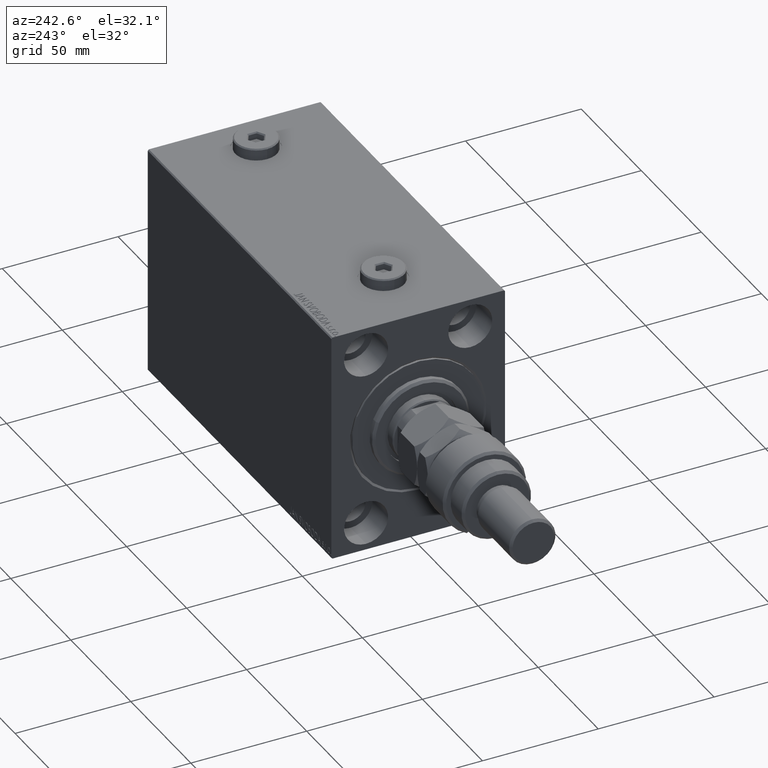
[diagram: clean part render]
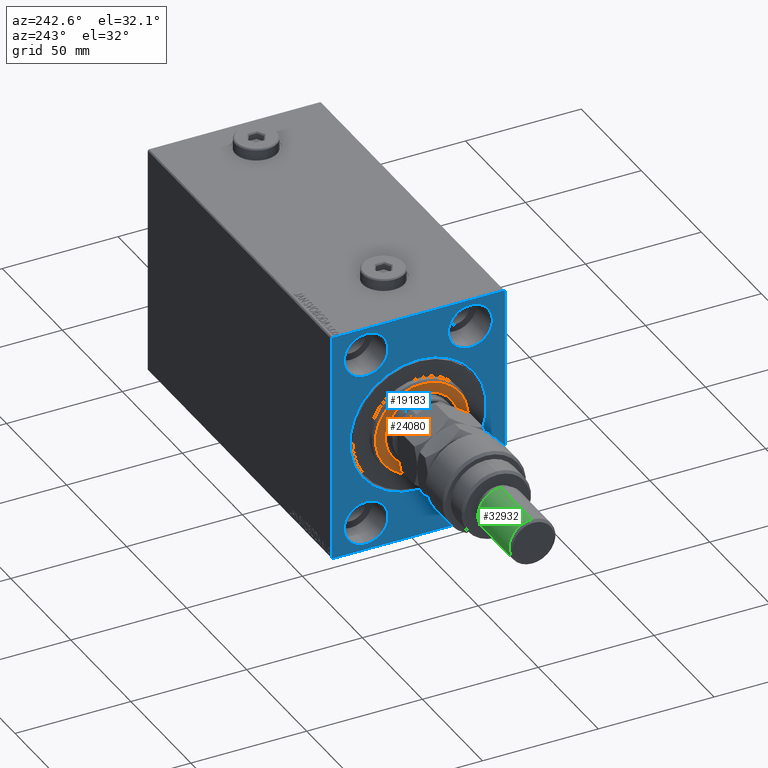
[diagram: same view with three faces highlighted in distinct colors, each labeled with its STEP entity id]
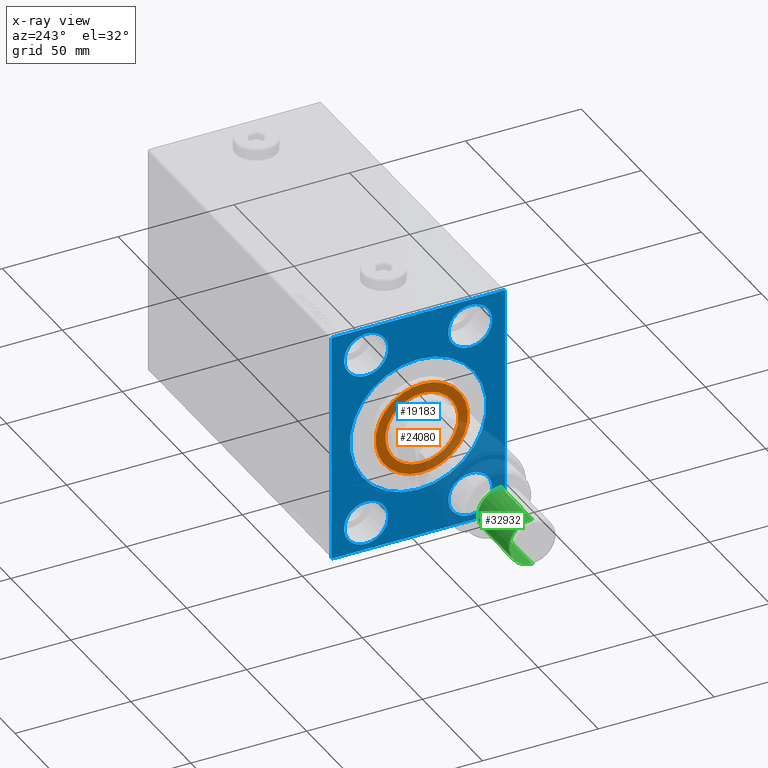
[diagram: x-ray of the same camera — body ghosted, the three highlighted faces saturated]
A machine part, auxiliary view with three faces highlighted in distinct colors.
The next image is the same camera in x-ray (body ghosted, the three faces saturated) — at least one of them is partly hidden behind the body in this view.
Their STEP definitions:

[orange] entity #24080 — the highlighted planar face has unit normal (-1, 0, 0).
#350 = AXIS2_PLACEMENT_3D ( 'NONE', #40613, #15495, #4063 ) ;
#1310 = CARTESIAN_POINT ( 'NONE',  ( 3.000000000000000000, 1.928818708657080950E-15, -15.75000000000000000 ) ) ;
#2079 = AXIS2_PLACEMENT_3D ( 'NONE', #40992, #47400, #21098 ) ;
#4063 = DIRECTION ( 'NONE',  ( 0.000000000000000000, 0.000000000000000000, -1.000000000000000000 ) ) ;
#5836 = DIRECTION ( 'NONE',  ( 0.000000000000000000, 0.000000000000000000, -1.000000000000000000 ) ) ;
#6818 = VERTEX_POINT ( 'NONE', #1310 ) ;
#8555 = CARTESIAN_POINT ( 'NONE',  ( 3.000000000000000000, 0.000000000000000000, 15.75000000000000000 ) ) ;
#8758 = DIRECTION ( 'NONE',  ( 1.000000000000000000, -0.000000000000000000, 0.000000000000000000 ) ) ;
#8840 = CIRCLE ( 'NONE', #23633, 15.75000000000000000 ) ;
#9657 = DIRECTION ( 'NONE',  ( 0.000000000000000000, 0.000000000000000000, -1.000000000000000000 ) ) ;
#13213 = EDGE_CURVE ( 'NONE', #6818, #46560, #8840, .T. ) ;
#13353 = EDGE_CURVE ( 'NONE', #33392, #39991, #41526, .T. ) ;
#13971 = DIRECTION ( 'NONE',  ( 0.000000000000000000, 0.000000000000000000, -1.000000000000000000 ) ) ;
#14736 = EDGE_CURVE ( 'NONE', #46560, #6818, #31459, .T. ) ;
#15495 = DIRECTION ( 'NONE',  ( -1.000000000000000000, 0.000000000000000000, -0.000000000000000000 ) ) ;
#17137 = CARTESIAN_POINT ( 'NONE',  ( 3.000000000000000000, 0.000000000000000000, 0.000000000000000000 ) ) ;
#17443 = PLANE ( 'NONE',  #2079 ) ;
#21098 = DIRECTION ( 'NONE',  ( 0.000000000000000000, 0.000000000000000000, -1.000000000000000000 ) ) ;
#21117 = DIRECTION ( 'NONE',  ( -1.000000000000000000, 0.000000000000000000, -0.000000000000000000 ) ) ;
#22487 = FACE_BOUND ( 'NONE', #32761, .T. ) ;
#23633 = AXIS2_PLACEMENT_3D ( 'NONE', #43031, #21117, #9657 ) ;
#24080 = ADVANCED_FACE ( 'NONE', ( #35717, #22487 ), #17443, .T. ) ;
#24497 = ORIENTED_EDGE ( 'NONE', *, *, #13353, .T. ) ;
#28285 = CARTESIAN_POINT ( 'NONE',  ( 3.000000000000000000, 0.000000000000000000, 19.99999999999999645 ) ) ;
#28342 = DIRECTION ( 'NONE',  ( 1.000000000000000000, -0.000000000000000000, 0.000000000000000000 ) ) ;
#29261 = CARTESIAN_POINT ( 'NONE',  ( 3.000000000000000000, 2.510525938252074087E-15, -19.99999999999999645 ) ) ;
#31459 = CIRCLE ( 'NONE', #350, 15.75000000000000000 ) ;
#32761 = EDGE_LOOP ( 'NONE', ( #37862, #37305 ) ) ;
#33392 = VERTEX_POINT ( 'NONE', #29261 ) ;
#35074 = CARTESIAN_POINT ( 'NONE',  ( 3.000000000000000000, 0.000000000000000000, 0.000000000000000000 ) ) ;
#35340 = EDGE_LOOP ( 'NONE', ( #39385, #24497 ) ) ;
#35717 = FACE_OUTER_BOUND ( 'NONE', #35340, .T. ) ;
#37305 = ORIENTED_EDGE ( 'NONE', *, *, #13213, .T. ) ;
#37862 = ORIENTED_EDGE ( 'NONE', *, *, #14736, .T. ) ;
#39385 = ORIENTED_EDGE ( 'NONE', *, *, #45651, .T. ) ;
#39991 = VERTEX_POINT ( 'NONE', #28285 ) ;
#40613 = CARTESIAN_POINT ( 'NONE',  ( 3.000000000000000000, 0.000000000000000000, 0.000000000000000000 ) ) ;
#40762 = AXIS2_PLACEMENT_3D ( 'NONE', #35074, #8758, #5836 ) ;
#40992 = CARTESIAN_POINT ( 'NONE',  ( 3.000000000000000000, 0.000000000000000000, 0.000000000000000000 ) ) ;
#41526 = CIRCLE ( 'NONE', #40762, 19.99999999999999645 ) ;
#43031 = CARTESIAN_POINT ( 'NONE',  ( 3.000000000000000000, 0.000000000000000000, 0.000000000000000000 ) ) ;
#45173 = AXIS2_PLACEMENT_3D ( 'NONE', #17137, #28342, #13971 ) ;
#45651 = EDGE_CURVE ( 'NONE', #39991, #33392, #47523, .T. ) ;
#46560 = VERTEX_POINT ( 'NONE', #8555 ) ;
#47400 = DIRECTION ( 'NONE',  ( 1.000000000000000000, -0.000000000000000000, 0.000000000000000000 ) ) ;
#47523 = CIRCLE ( 'NONE', #45173, 19.99999999999999645 ) ;

[blue] entity #19183 — the highlighted planar face has unit normal (1, 0, 0).
#151 = CARTESIAN_POINT ( 'NONE',  ( 0.000000000000000000, 22.50000000000000355, 37.99999999999999289 ) ) ;
#185 = FACE_BOUND ( 'NONE', #23927, .T. ) ;
#284 = ORIENTED_EDGE ( 'NONE', *, *, #31655, .T. ) ;
#405 = DIRECTION ( 'NONE',  ( 0.000000000000000000, -1.000000000000000000, -1.850371707708594316E-16 ) ) ;
#414 = FACE_BOUND ( 'NONE', #21995, .T. ) ;
#1552 = ORIENTED_EDGE ( 'NONE', *, *, #46703, .F. ) ;
#1557 = DIRECTION ( 'NONE',  ( -1.000000000000000000, 0.000000000000000000, 0.000000000000000000 ) ) ;
#1568 = CARTESIAN_POINT ( 'NONE',  ( 0.000000000000000000, 0.000000000000000000, 0.000000000000000000 ) ) ;
#1592 = LINE ( 'NONE', #20339, #16109 ) ;
#3367 = PLANE ( 'NONE',  #44818 ) ;
#3442 = DIRECTION ( 'NONE',  ( 0.000000000000000000, -1.387778780781445676E-16, 1.000000000000000000 ) ) ;
#3606 = CARTESIAN_POINT ( 'NONE',  ( 0.000000000000000000, 22.49999999999999645, -28.49999999999998934 ) ) ;
#3941 = ORIENTED_EDGE ( 'NONE', *, *, #6008, .T. ) ;
#4014 = DIRECTION ( 'NONE',  ( -0.000000000000000000, 0.7071067811865474617, 0.7071067811865474617 ) ) ;
#4018 = LINE ( 'NONE', #18879, #6780 ) ;
#4499 = DIRECTION ( 'NONE',  ( -1.000000000000000000, 0.000000000000000000, 0.000000000000000000 ) ) ;
#5046 = ORIENTED_EDGE ( 'NONE', *, *, #33330, .F. ) ;
#6008 = EDGE_CURVE ( 'NONE', #15489, #46156, #11423, .T. ) ;
#6098 = CARTESIAN_POINT ( 'NONE',  ( 0.000000000000000000, 36.99999999999999289, 50.00000000000000711 ) ) ;
#6126 = CARTESIAN_POINT ( 'NONE',  ( 0.000000000000000000, -37.00000000000000711, 49.99999999999999289 ) ) ;
#6343 = VECTOR ( 'NONE', #48000, 1000.000000000000000 ) ;
#6579 = DIRECTION ( 'NONE',  ( -0.000000000000000000, 0.7071067811865425767, -0.7071067811865525687 ) ) ;
#6746 = EDGE_CURVE ( 'NONE', #28598, #47787, #30304, .T. ) ;
#6780 = VECTOR ( 'NONE', #37849, 1000.000000000000114 ) ;
#6804 = EDGE_CURVE ( 'NONE', #28598, #8506, #9325, .T. ) ;
#7699 = LINE ( 'NONE', #18209, #22221 ) ;
#8309 = CIRCLE ( 'NONE', #21558, 9.500000000000001776 ) ;
#8448 = DIRECTION ( 'NONE',  ( 0.000000000000000000, 0.000000000000000000, 1.000000000000000000 ) ) ;
#8506 = VERTEX_POINT ( 'NONE', #9029 ) ;
#8600 = CARTESIAN_POINT ( 'NONE',  ( 0.000000000000000000, -37.50000000000000711, 49.99999999999999289 ) ) ;
#8775 = EDGE_CURVE ( 'NONE', #26462, #24177, #29742, .T. ) ;
#8841 = CARTESIAN_POINT ( 'NONE',  ( 0.000000000000000000, 22.49999999999999645, -37.99999999999999289 ) ) ;
#9029 = CARTESIAN_POINT ( 'NONE',  ( 0.000000000000000000, -37.50000000000000711, -49.50000000000003553 ) ) ;
#9200 = ORIENTED_EDGE ( 'NONE', *, *, #48096, .F. ) ;
#9325 = LINE ( 'NONE', #8600, #45191 ) ;
#10119 = CARTESIAN_POINT ( 'NONE',  ( 0.000000000000000000, 0.000000000000000000, 0.000000000000000000 ) ) ;
#10968 = DIRECTION ( 'NONE',  ( -1.000000000000000000, 0.000000000000000000, 0.000000000000000000 ) ) ;
#11423 = LINE ( 'NONE', #39954, #43642 ) ;
#11989 = EDGE_LOOP ( 'NONE', ( #13000, #34120, #19505, #3941, #1552, #284, #15835, #14437 ) ) ;
#12383 = CARTESIAN_POINT ( 'NONE',  ( 0.000000000000000000, -22.49999999999999645, 37.99999999999999289 ) ) ;
#12715 = CARTESIAN_POINT ( 'NONE',  ( 0.000000000000000000, -22.49999999999999645, 28.49999999999998934 ) ) ;
#12886 = CARTESIAN_POINT ( 'NONE',  ( 0.000000000000000000, 0.000000000000000000, 29.50000000000002842 ) ) ;
#13000 = ORIENTED_EDGE ( 'NONE', *, *, #6804, .F. ) ;
#13722 = CARTESIAN_POINT ( 'NONE',  ( 0.000000000000000000, 37.00000000000000711, -50.00000000000000000 ) ) ;
#14437 = ORIENTED_EDGE ( 'NONE', *, *, #32482, .T. ) ;
#14522 = AXIS2_PLACEMENT_3D ( 'NONE', #34914, #45629, #26658 ) ;
#14529 = VERTEX_POINT ( 'NONE', #17850 ) ;
#15489 = VERTEX_POINT ( 'NONE', #6098 ) ;
#15835 = ORIENTED_EDGE ( 'NONE', *, *, #46786, .F. ) ;
#15858 = CARTESIAN_POINT ( 'NONE',  ( 0.000000000000000000, 37.50000000000000711, -49.50000000000000000 ) ) ;
#16109 = VECTOR ( 'NONE', #35197, 1000.000000000000114 ) ;
#16251 = ORIENTED_EDGE ( 'NONE', *, *, #32341, .T. ) ;
#16413 = DIRECTION ( 'NONE',  ( 1.000000000000000000, 0.000000000000000000, 0.000000000000000000 ) ) ;
#16506 = AXIS2_PLACEMENT_3D ( 'NONE', #12383, #16536, #23606 ) ;
#16536 = DIRECTION ( 'NONE',  ( -1.000000000000000000, 0.000000000000000000, 0.000000000000000000 ) ) ;
#17330 = LINE ( 'NONE', #25861, #6343 ) ;
#17827 = VERTEX_POINT ( 'NONE', #47620 ) ;
#17850 = CARTESIAN_POINT ( 'NONE',  ( 0.000000000000000000, 22.50000000000000355, 28.49999999999998934 ) ) ;
#17995 = VECTOR ( 'NONE', #4014, 1000.000000000000114 ) ;
#18014 = CARTESIAN_POINT ( 'NONE',  ( 0.000000000000000000, -22.49999999999999645, 47.49999999999999289 ) ) ;
#18051 = EDGE_CURVE ( 'NONE', #46577, #40910, #47144, .T. ) ;
#18209 = CARTESIAN_POINT ( 'NONE',  ( 0.000000000000000000, 37.49999999999999289, 50.00000000000000711 ) ) ;
#18220 = CARTESIAN_POINT ( 'NONE',  ( 0.000000000000000000, 0.000000000000000000, 0.000000000000000000 ) ) ;
#18879 = CARTESIAN_POINT ( 'NONE',  ( 0.000000000000000000, -37.00000000000003553, -50.00000000000000711 ) ) ;
#19097 = ORIENTED_EDGE ( 'NONE', *, *, #32562, .F. ) ;
#19183 = ADVANCED_FACE ( 'NONE', ( #414, #185, #36966, #21639, #29893, #33544 ), #3367, .F. ) ;
#19431 = DIRECTION ( 'NONE',  ( -1.000000000000000000, 0.000000000000000000, 0.000000000000000000 ) ) ;
#19505 = ORIENTED_EDGE ( 'NONE', *, *, #21838, .F. ) ;
#19981 = VERTEX_POINT ( 'NONE', #3606 ) ;
#20251 = CARTESIAN_POINT ( 'NONE',  ( 0.000000000000000000, -22.50000000000000711, -47.49999999999999289 ) ) ;
#20258 = DIRECTION ( 'NONE',  ( -1.000000000000000000, 0.000000000000000000, 0.000000000000000000 ) ) ;
#20339 = CARTESIAN_POINT ( 'NONE',  ( 0.000000000000000000, 37.50000000000000711, -49.50000000000000000 ) ) ;
#20693 = CARTESIAN_POINT ( 'NONE',  ( 0.000000000000000000, 22.49999999999999645, -47.49999999999999289 ) ) ;
#21440 = CARTESIAN_POINT ( 'NONE',  ( 0.000000000000000000, -22.50000000000000711, -37.99999999999999289 ) ) ;
#21558 = AXIS2_PLACEMENT_3D ( 'NONE', #45830, #20258, #42173 ) ;
#21639 = FACE_BOUND ( 'NONE', #27295, .T. ) ;
#21838 = EDGE_CURVE ( 'NONE', #15489, #47787, #7699, .T. ) ;
#21995 = EDGE_LOOP ( 'NONE', ( #16251, #45481 ) ) ;
#22205 = CARTESIAN_POINT ( 'NONE',  ( 0.000000000000000000, -22.50000000000000711, -28.49999999999998934 ) ) ;
#22221 = VECTOR ( 'NONE', #405, 1000.000000000000000 ) ;
#22309 = CARTESIAN_POINT ( 'NONE',  ( 0.000000000000000000, -37.50000000000000711, 49.49999999999999289 ) ) ;
#22870 = VERTEX_POINT ( 'NONE', #24136 ) ;
#23100 = AXIS2_PLACEMENT_3D ( 'NONE', #8841, #1557, #42699 ) ;
#23280 = EDGE_CURVE ( 'NONE', #19981, #35795, #37841, .T. ) ;
#23479 = AXIS2_PLACEMENT_3D ( 'NONE', #151, #4499, #30566 ) ;
#23606 = DIRECTION ( 'NONE',  ( 0.000000000000000000, 0.000000000000000000, 1.000000000000000000 ) ) ;
#23927 = EDGE_LOOP ( 'NONE', ( #45086, #19097 ) ) ;
#24136 = CARTESIAN_POINT ( 'NONE',  ( 0.000000000000000000, 3.612708057484695548E-15, -29.50000000000002842 ) ) ;
#24177 = VERTEX_POINT ( 'NONE', #12715 ) ;
#25134 = EDGE_CURVE ( 'NONE', #40910, #46577, #8309, .T. ) ;
#25810 = VECTOR ( 'NONE', #3442, 1000.000000000000000 ) ;
#25861 = CARTESIAN_POINT ( 'NONE',  ( 0.000000000000000000, -37.50000000000000711, -50.00000000000000711 ) ) ;
#26462 = VERTEX_POINT ( 'NONE', #18014 ) ;
#26508 = EDGE_CURVE ( 'NONE', #24177, #26462, #27803, .T. ) ;
#26658 = DIRECTION ( 'NONE',  ( 0.000000000000000000, 0.000000000000000000, 1.000000000000000000 ) ) ;
#26901 = AXIS2_PLACEMENT_3D ( 'NONE', #21440, #36300, #43354 ) ;
#27295 = EDGE_LOOP ( 'NONE', ( #9200, #5046 ) ) ;
#27367 = ORIENTED_EDGE ( 'NONE', *, *, #25134, .F. ) ;
#27803 = CIRCLE ( 'NONE', #40262, 9.500000000000001776 ) ;
#28111 = DIRECTION ( 'NONE',  ( 0.000000000000000000, 0.000000000000000000, -1.000000000000000000 ) ) ;
#28598 = VERTEX_POINT ( 'NONE', #22309 ) ;
#28809 = EDGE_CURVE ( 'NONE', #22870, #35827, #35755, .T. ) ;
#29499 = DIRECTION ( 'NONE',  ( 0.000000000000000000, 0.000000000000000000, 1.000000000000000000 ) ) ;
#29501 = CARTESIAN_POINT ( 'NONE',  ( 0.000000000000000000, 37.49999999999999289, 49.50000000000000000 ) ) ;
#29607 = AXIS2_PLACEMENT_3D ( 'NONE', #1568, #16413, #28111 ) ;
#29742 = CIRCLE ( 'NONE', #16506, 9.500000000000001776 ) ;
#29893 = FACE_BOUND ( 'NONE', #34833, .T. ) ;
#30304 = LINE ( 'NONE', #37382, #17995 ) ;
#30566 = DIRECTION ( 'NONE',  ( 0.000000000000000000, 0.000000000000000000, 1.000000000000000000 ) ) ;
#31655 = EDGE_CURVE ( 'NONE', #39095, #39594, #1592, .T. ) ;
#32341 = EDGE_CURVE ( 'NONE', #35827, #22870, #43345, .T. ) ;
#32434 = CARTESIAN_POINT ( 'NONE',  ( 0.000000000000000000, 37.50000000000000711, -50.00000000000000000 ) ) ;
#32482 = EDGE_CURVE ( 'NONE', #17827, #8506, #4018, .T. ) ;
#32562 = EDGE_CURVE ( 'NONE', #35795, #19981, #44125, .T. ) ;
#32783 = DIRECTION ( 'NONE',  ( 1.000000000000000000, 0.000000000000000000, 0.000000000000000000 ) ) ;
#33330 = EDGE_CURVE ( 'NONE', #14529, #34103, #36372, .T. ) ;
#33544 = FACE_OUTER_BOUND ( 'NONE', #11989, .T. ) ;
#33621 = CARTESIAN_POINT ( 'NONE',  ( 0.000000000000000000, 22.50000000000000355, 47.49999999999999289 ) ) ;
#33984 = AXIS2_PLACEMENT_3D ( 'NONE', #10119, #32783, #47636 ) ;
#34103 = VERTEX_POINT ( 'NONE', #33621 ) ;
#34120 = ORIENTED_EDGE ( 'NONE', *, *, #6746, .T. ) ;
#34360 = CIRCLE ( 'NONE', #23479, 9.500000000000001776 ) ;
#34833 = EDGE_LOOP ( 'NONE', ( #27367, #36636 ) ) ;
#34914 = CARTESIAN_POINT ( 'NONE',  ( 0.000000000000000000, 22.49999999999999645, -37.99999999999999289 ) ) ;
#35197 = DIRECTION ( 'NONE',  ( 0.000000000000000000, -0.7071067811865474617, -0.7071067811865474617 ) ) ;
#35755 = CIRCLE ( 'NONE', #29607, 29.50000000000002842 ) ;
#35795 = VERTEX_POINT ( 'NONE', #20693 ) ;
#35827 = VERTEX_POINT ( 'NONE', #12886 ) ;
#36300 = DIRECTION ( 'NONE',  ( -1.000000000000000000, 0.000000000000000000, 0.000000000000000000 ) ) ;
#36372 = CIRCLE ( 'NONE', #37163, 9.500000000000001776 ) ;
#36636 = ORIENTED_EDGE ( 'NONE', *, *, #18051, .F. ) ;
#36966 = FACE_BOUND ( 'NONE', #47493, .T. ) ;
#37163 = AXIS2_PLACEMENT_3D ( 'NONE', #44343, #10968, #29499 ) ;
#37382 = CARTESIAN_POINT ( 'NONE',  ( 0.000000000000000000, -37.50000000000000711, 49.49999999999999289 ) ) ;
#37841 = CIRCLE ( 'NONE', #14522, 9.500000000000001776 ) ;
#37849 = DIRECTION ( 'NONE',  ( -0.000000000000000000, -0.7071067811865474617, 0.7071067811865474617 ) ) ;
#38053 = ORIENTED_EDGE ( 'NONE', *, *, #26508, .F. ) ;
#39095 = VERTEX_POINT ( 'NONE', #15858 ) ;
#39594 = VERTEX_POINT ( 'NONE', #13722 ) ;
#39954 = CARTESIAN_POINT ( 'NONE',  ( 0.000000000000000000, 36.99999999999999289, 50.00000000000000711 ) ) ;
#40220 = LINE ( 'NONE', #32434, #25810 ) ;
#40262 = AXIS2_PLACEMENT_3D ( 'NONE', #41588, #19431, #8448 ) ;
#40385 = DIRECTION ( 'NONE',  ( 0.000000000000000000, 0.000000000000000000, -1.000000000000000000 ) ) ;
#40910 = VERTEX_POINT ( 'NONE', #22205 ) ;
#41588 = CARTESIAN_POINT ( 'NONE',  ( 0.000000000000000000, -22.49999999999999645, 37.99999999999999289 ) ) ;
#42173 = DIRECTION ( 'NONE',  ( 0.000000000000000000, 0.000000000000000000, 1.000000000000000000 ) ) ;
#42454 = DIRECTION ( 'NONE',  ( 0.000000000000000000, 0.000000000000000000, -1.000000000000000000 ) ) ;
#42699 = DIRECTION ( 'NONE',  ( 0.000000000000000000, 0.000000000000000000, 1.000000000000000000 ) ) ;
#43305 = ORIENTED_EDGE ( 'NONE', *, *, #8775, .F. ) ;
#43345 = CIRCLE ( 'NONE', #33984, 29.50000000000002842 ) ;
#43354 = DIRECTION ( 'NONE',  ( 0.000000000000000000, 0.000000000000000000, 1.000000000000000000 ) ) ;
#43642 = VECTOR ( 'NONE', #6579, 999.9999999999998863 ) ;
#44038 = DIRECTION ( 'NONE',  ( 1.000000000000000000, 0.000000000000000000, 0.000000000000000000 ) ) ;
#44125 = CIRCLE ( 'NONE', #23100, 9.500000000000001776 ) ;
#44343 = CARTESIAN_POINT ( 'NONE',  ( 0.000000000000000000, 22.50000000000000355, 37.99999999999999289 ) ) ;
#44818 = AXIS2_PLACEMENT_3D ( 'NONE', #18220, #44038, #40385 ) ;
#45086 = ORIENTED_EDGE ( 'NONE', *, *, #23280, .F. ) ;
#45191 = VECTOR ( 'NONE', #42454, 1000.000000000000000 ) ;
#45481 = ORIENTED_EDGE ( 'NONE', *, *, #28809, .T. ) ;
#45629 = DIRECTION ( 'NONE',  ( -1.000000000000000000, 0.000000000000000000, 0.000000000000000000 ) ) ;
#45830 = CARTESIAN_POINT ( 'NONE',  ( 0.000000000000000000, -22.50000000000000711, -37.99999999999999289 ) ) ;
#46156 = VERTEX_POINT ( 'NONE', #29501 ) ;
#46577 = VERTEX_POINT ( 'NONE', #20251 ) ;
#46703 = EDGE_CURVE ( 'NONE', #39095, #46156, #40220, .T. ) ;
#46786 = EDGE_CURVE ( 'NONE', #17827, #39594, #17330, .T. ) ;
#47144 = CIRCLE ( 'NONE', #26901, 9.500000000000001776 ) ;
#47493 = EDGE_LOOP ( 'NONE', ( #43305, #38053 ) ) ;
#47620 = CARTESIAN_POINT ( 'NONE',  ( 0.000000000000000000, -37.00000000000003553, -50.00000000000000711 ) ) ;
#47636 = DIRECTION ( 'NONE',  ( 0.000000000000000000, 0.000000000000000000, -1.000000000000000000 ) ) ;
#47787 = VERTEX_POINT ( 'NONE', #6126 ) ;
#48000 = DIRECTION ( 'NONE',  ( 0.000000000000000000, 1.000000000000000000, 9.251858538542970348E-17 ) ) ;
#48096 = EDGE_CURVE ( 'NONE', #34103, #14529, #34360, .T. ) ;

[green] entity #32932 — the highlighted cylindrical surface (edge-blend (fillet) strip) has radius 10 mm, axis along (1, -0, -0).
#3487 = DIRECTION ( 'NONE',  ( -0.000000000000000000, -0.000000000000000000, -1.000000000000000000 ) ) ;
#3972 = VECTOR ( 'NONE', #7293, 1000.000000000000000 ) ;
#4190 = CARTESIAN_POINT ( 'NONE',  ( 0.000000000000000000, 0.000000000000000000, 56.00000000000000711 ) ) ;
#5927 = EDGE_CURVE ( 'NONE', #36820, #39148, #44329, .T. ) ;
#6032 = AXIS2_PLACEMENT_3D ( 'NONE', #29327, #13727, #6900 ) ;
#6900 = DIRECTION ( 'NONE',  ( 1.000000000000000000, 0.000000000000000000, 0.000000000000000000 ) ) ;
#7293 = DIRECTION ( 'NONE',  ( -0.000000000000000000, -0.000000000000000000, -1.000000000000000000 ) ) ;
#9351 = AXIS2_PLACEMENT_3D ( 'NONE', #38197, #24326, #46230 ) ;
#12241 = CIRCLE ( 'NONE', #6032, 10.00000000000000000 ) ;
#13727 = DIRECTION ( 'NONE',  ( -0.000000000000000000, -0.000000000000000000, 1.000000000000000000 ) ) ;
#18585 = FACE_OUTER_BOUND ( 'NONE', #41647, .T. ) ;
#18732 = CIRCLE ( 'NONE', #9351, 10.00000000000000000 ) ;
#19053 = DIRECTION ( 'NONE',  ( -1.000000000000000000, 0.000000000000000000, 0.000000000000000000 ) ) ;
#20817 = AXIS2_PLACEMENT_3D ( 'NONE', #4190, #3487, #19053 ) ;
#21453 = EDGE_CURVE ( 'NONE', #24539, #34362, #47503, .T. ) ;
#24326 = DIRECTION ( 'NONE',  ( 0.000000000000000000, 0.000000000000000000, -1.000000000000000000 ) ) ;
#24539 = VERTEX_POINT ( 'NONE', #42655 ) ;
#25562 = CARTESIAN_POINT ( 'NONE',  ( 10.00000000000000000, 1.224646799147353256E-15, 29.00000000000000711 ) ) ;
#29327 = CARTESIAN_POINT ( 'NONE',  ( 0.000000000000000000, 0.000000000000000000, 29.00000000000000711 ) ) ;
#29570 = ORIENTED_EDGE ( 'NONE', *, *, #21453, .T. ) ;
#30511 = ORIENTED_EDGE ( 'NONE', *, *, #44364, .T. ) ;
#31846 = ORIENTED_EDGE ( 'NONE', *, *, #5927, .F. ) ;
#32410 = DIRECTION ( 'NONE',  ( -0.000000000000000000, -0.000000000000000000, -1.000000000000000000 ) ) ;
#32650 = CARTESIAN_POINT ( 'NONE',  ( 10.00000000000000000, 1.224646799147353256E-15, 56.00000000000000711 ) ) ;
#32932 = ADVANCED_FACE ( 'NONE', ( #18585 ), #36858, .T. ) ;
#33696 = EDGE_CURVE ( 'NONE', #34362, #39148, #12241, .T. ) ;
#34362 = VERTEX_POINT ( 'NONE', #25562 ) ;
#34646 = VECTOR ( 'NONE', #32410, 1000.000000000000000 ) ;
#35343 = CARTESIAN_POINT ( 'NONE',  ( -10.00000000000000000, 0.000000000000000000, 29.00000000000000711 ) ) ;
#36532 = CARTESIAN_POINT ( 'NONE',  ( -10.00000000000000000, 0.000000000000000000, 54.99999999999998579 ) ) ;
#36820 = VERTEX_POINT ( 'NONE', #36532 ) ;
#36858 = CYLINDRICAL_SURFACE ( 'NONE', #20817, 10.00000000000000000 ) ;
#38197 = CARTESIAN_POINT ( 'NONE',  ( 0.000000000000000000, 0.000000000000000000, 54.99999999999998579 ) ) ;
#39148 = VERTEX_POINT ( 'NONE', #35343 ) ;
#40675 = CARTESIAN_POINT ( 'NONE',  ( -10.00000000000000000, 0.000000000000000000, 56.00000000000000711 ) ) ;
#41647 = EDGE_LOOP ( 'NONE', ( #30511, #29570, #44637, #31846 ) ) ;
#42655 = CARTESIAN_POINT ( 'NONE',  ( 10.00000000000000000, 1.224646799147353256E-15, 54.99999999999998579 ) ) ;
#44329 = LINE ( 'NONE', #40675, #3972 ) ;
#44364 = EDGE_CURVE ( 'NONE', #36820, #24539, #18732, .T. ) ;
#44637 = ORIENTED_EDGE ( 'NONE', *, *, #33696, .T. ) ;
#46230 = DIRECTION ( 'NONE',  ( 1.000000000000000000, 0.000000000000000000, 0.000000000000000000 ) ) ;
#47503 = LINE ( 'NONE', #32650, #34646 ) ;